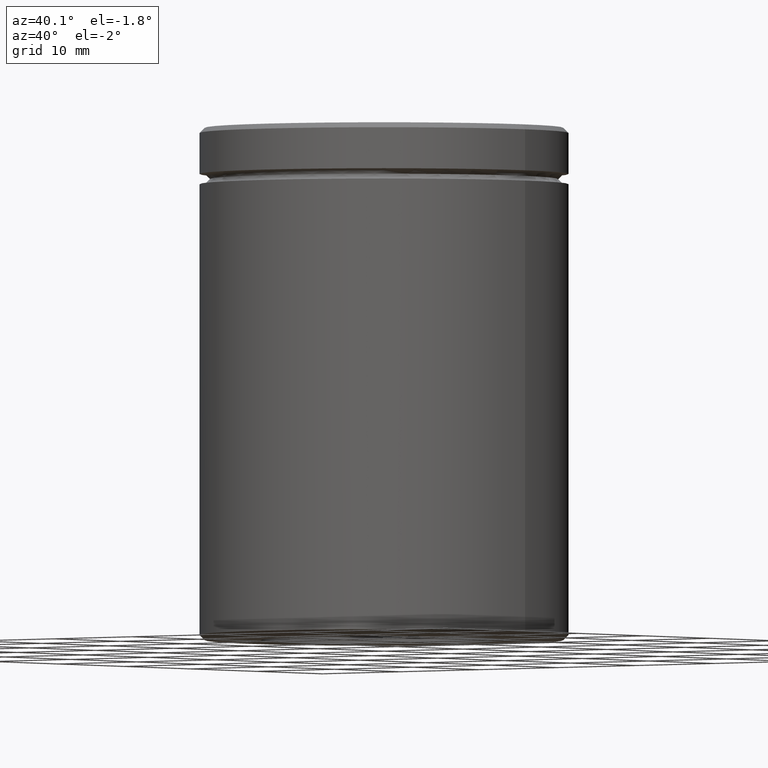
[diagram: clean part render]
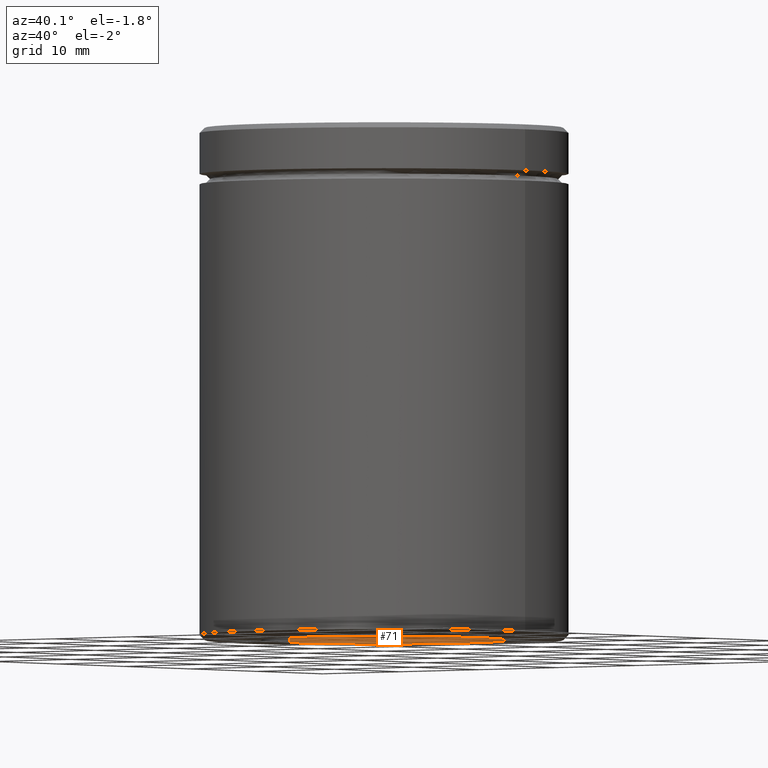
[diagram: same view with one face highlighted and labeled with its STEP entity id]
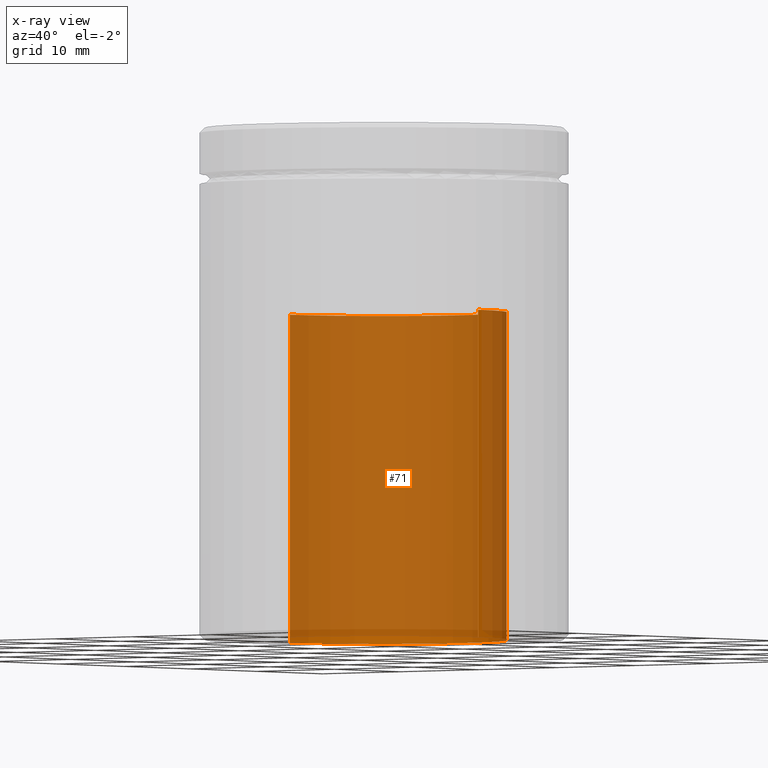
[diagram: x-ray of the same camera — body ghosted, the highlighted face saturated]
A machine part, auxiliary view. The second image highlights one B-rep face of the part: STEP entity #71.
The next image is the same camera in x-ray: the body ghosted, the highlighted face saturated — about 96% of this face is hidden behind the body in this view.
In plain terms, the highlighted cylindrical surface (partial cylindrical patch) has radius 12 mm, axis along (-0, -0, -1).
Its self-contained STEP definition (entity closure, byte-faithful):
#19 = DIRECTION ( 'NONE',  ( -1.000000000000000000, 0.000000000000000000, 0.000000000000000000 ) ) ;
#21 = VERTEX_POINT ( 'NONE', #143 ) ;
#52 = CIRCLE ( 'NONE', #441, 12.00000000000000178 ) ;
#60 = DIRECTION ( 'NONE',  ( -1.000000000000000000, 0.000000000000000000, 0.000000000000000000 ) ) ;
#71 = ADVANCED_FACE ( 'NONE', ( #83 ), #261, .F. ) ;
#79 = DIRECTION ( 'NONE',  ( -1.000000000000000000, 0.000000000000000000, 0.000000000000000000 ) ) ;
#83 = FACE_OUTER_BOUND ( 'NONE', #146, .T. ) ;
#121 = CARTESIAN_POINT ( 'NONE',  ( 0.000000000000000000, 0.000000000000000000, -18.00000000000000355 ) ) ;
#138 = AXIS2_PLACEMENT_3D ( 'NONE', #121, #508, #79 ) ;
#143 = CARTESIAN_POINT ( 'NONE',  ( -12.00000000000000178, 0.000000000000000000, -18.00000000000000355 ) ) ;
#145 = EDGE_CURVE ( 'NONE', #407, #318, #52, .T. ) ;
#146 = EDGE_LOOP ( 'NONE', ( #385, #239, #235, #243 ) ) ;
#154 = LINE ( 'NONE', #206, #489 ) ;
#175 = AXIS2_PLACEMENT_3D ( 'NONE', #536, #284, #60 ) ;
#206 = CARTESIAN_POINT ( 'NONE',  ( 12.00000000000000178, 1.469576158976824144E-15, -18.00000000000000355 ) ) ;
#207 = CIRCLE ( 'NONE', #175, 12.00000000000000178 ) ;
#235 = ORIENTED_EDGE ( 'NONE', *, *, #266, .T. ) ;
#237 = DIRECTION ( 'NONE',  ( -0.000000000000000000, -0.000000000000000000, -1.000000000000000000 ) ) ;
#239 = ORIENTED_EDGE ( 'NONE', *, *, #258, .F. ) ;
#243 = ORIENTED_EDGE ( 'NONE', *, *, #145, .T. ) ;
#247 = DIRECTION ( 'NONE',  ( 0.000000000000000000, 0.000000000000000000, -1.000000000000000000 ) ) ;
#258 = EDGE_CURVE ( 'NONE', #21, #321, #207, .T. ) ;
#261 = CYLINDRICAL_SURFACE ( 'NONE', #138, 12.00000000000000178 ) ;
#266 = EDGE_CURVE ( 'NONE', #21, #407, #491, .T. ) ;
#284 = DIRECTION ( 'NONE',  ( 0.000000000000000000, 0.000000000000000000, -1.000000000000000000 ) ) ;
#318 = VERTEX_POINT ( 'NONE', #493 ) ;
#320 = CARTESIAN_POINT ( 'NONE',  ( 12.00000000000000178, 1.469576158976824144E-15, -18.00000000000000355 ) ) ;
#321 = VERTEX_POINT ( 'NONE', #320 ) ;
#350 = CARTESIAN_POINT ( 'NONE',  ( -12.00000000000000178, 0.000000000000000000, -50.00000000000000000 ) ) ;
#385 = ORIENTED_EDGE ( 'NONE', *, *, #462, .F. ) ;
#407 = VERTEX_POINT ( 'NONE', #350 ) ;
#441 = AXIS2_PLACEMENT_3D ( 'NONE', #548, #247, #19 ) ;
#462 = EDGE_CURVE ( 'NONE', #321, #318, #154, .T. ) ;
#489 = VECTOR ( 'NONE', #516, 1000.000000000000000 ) ;
#491 = LINE ( 'NONE', #534, #569 ) ;
#493 = CARTESIAN_POINT ( 'NONE',  ( 12.00000000000000178, 1.469576158976824144E-15, -50.00000000000000000 ) ) ;
#508 = DIRECTION ( 'NONE',  ( -0.000000000000000000, -0.000000000000000000, -1.000000000000000000 ) ) ;
#516 = DIRECTION ( 'NONE',  ( -0.000000000000000000, -0.000000000000000000, -1.000000000000000000 ) ) ;
#534 = CARTESIAN_POINT ( 'NONE',  ( -12.00000000000000178, 0.000000000000000000, -18.00000000000000355 ) ) ;
#536 = CARTESIAN_POINT ( 'NONE',  ( 0.000000000000000000, 0.000000000000000000, -18.00000000000000355 ) ) ;
#548 = CARTESIAN_POINT ( 'NONE',  ( 0.000000000000000000, 0.000000000000000000, -50.00000000000000000 ) ) ;
#569 = VECTOR ( 'NONE', #237, 1000.000000000000000 ) ;